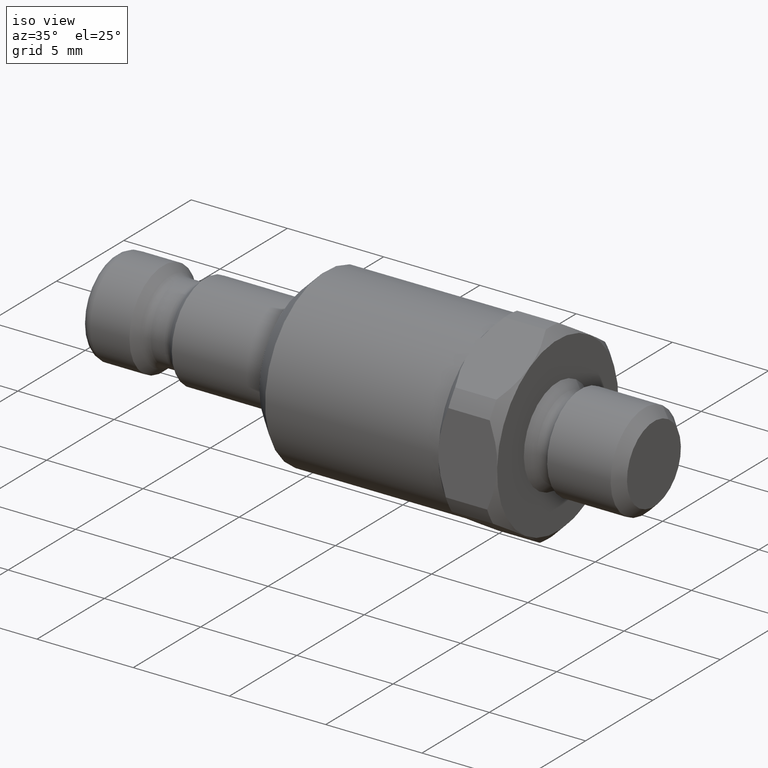
[diagram: clean part render]
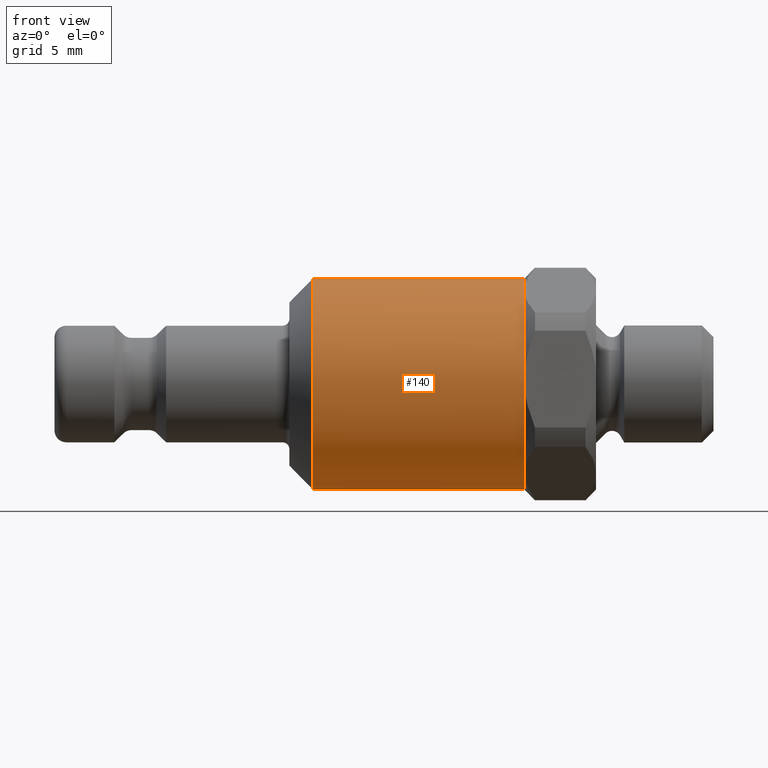
[diagram: tour spotlight — one face highlighted and labeled with its STEP entity id]
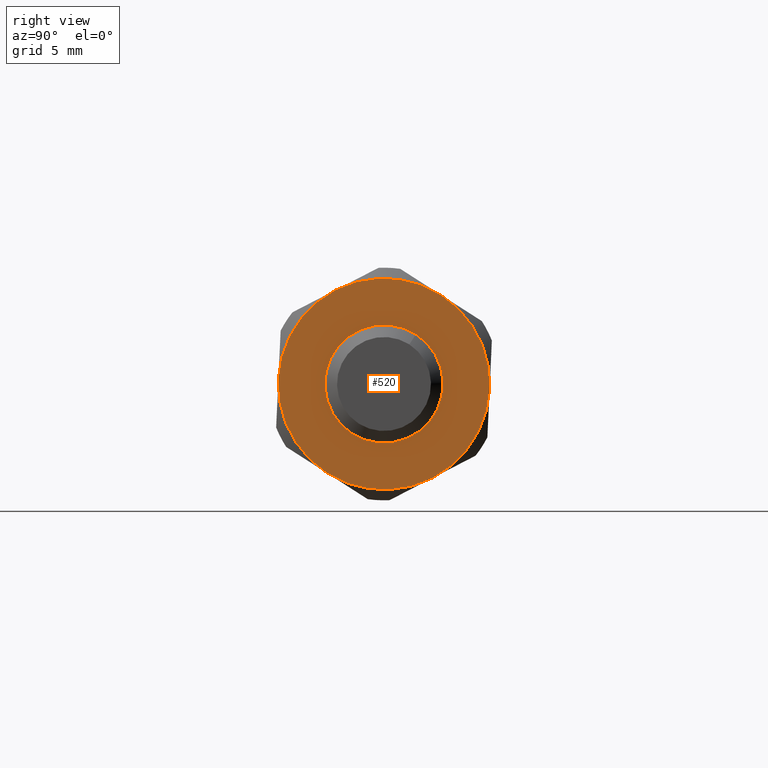
[diagram: tour spotlight — one face highlighted and labeled with its STEP entity id]
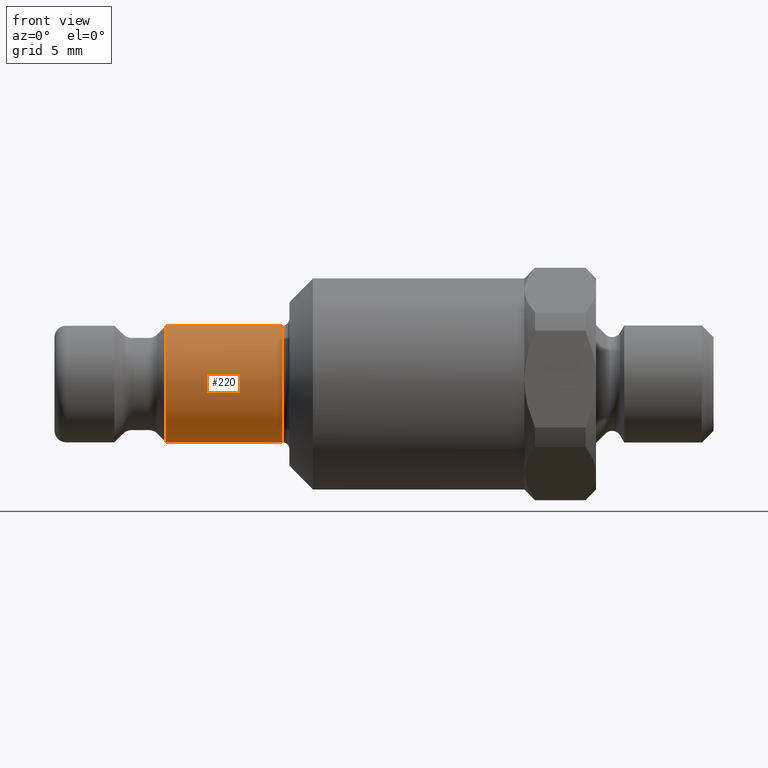
[diagram: tour spotlight — one face highlighted and labeled with its STEP entity id]
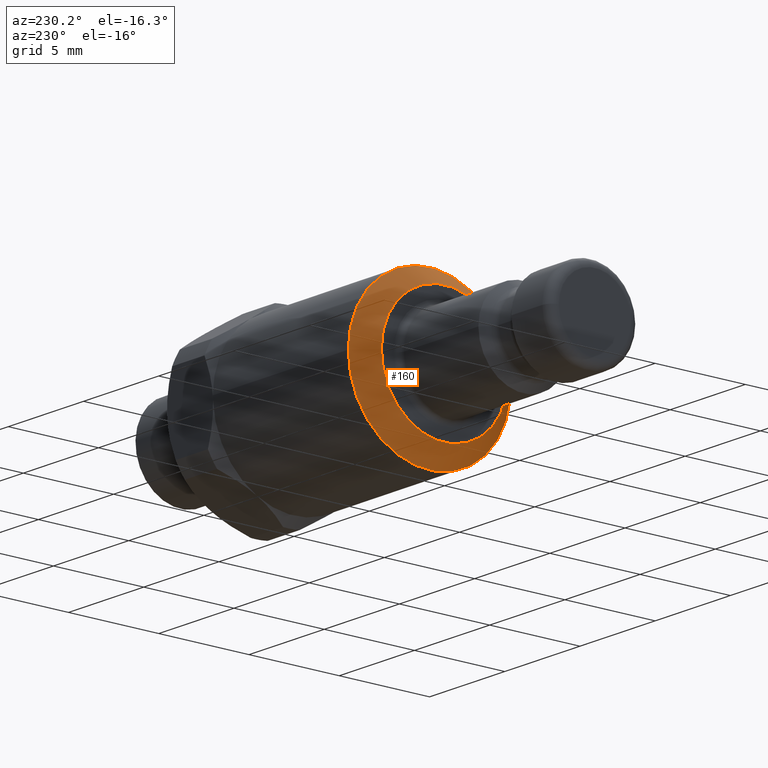
[diagram: tour spotlight — one face highlighted and labeled with its STEP entity id]
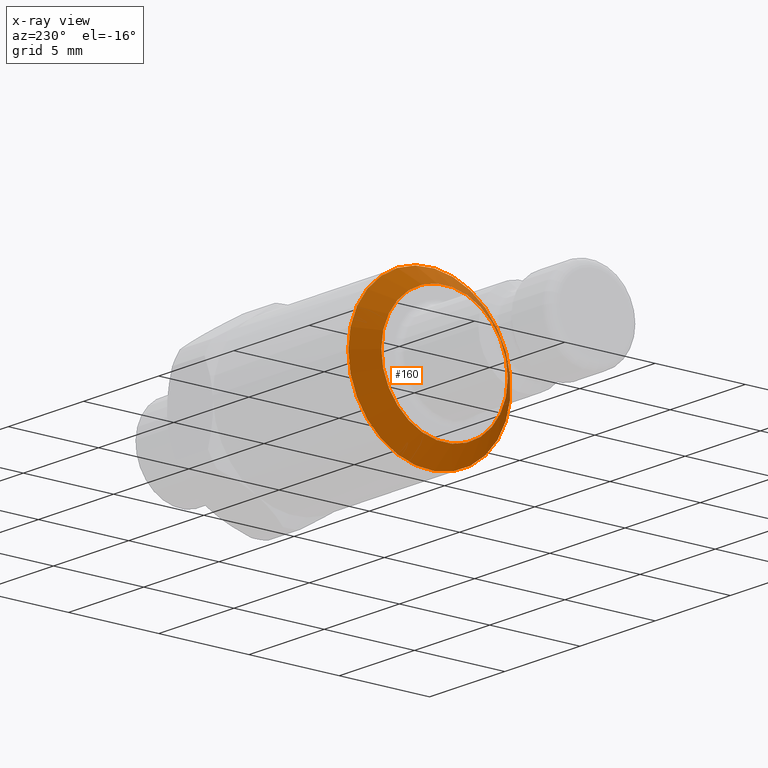
[diagram: x-ray of the same camera — body ghosted, this tour face saturated]
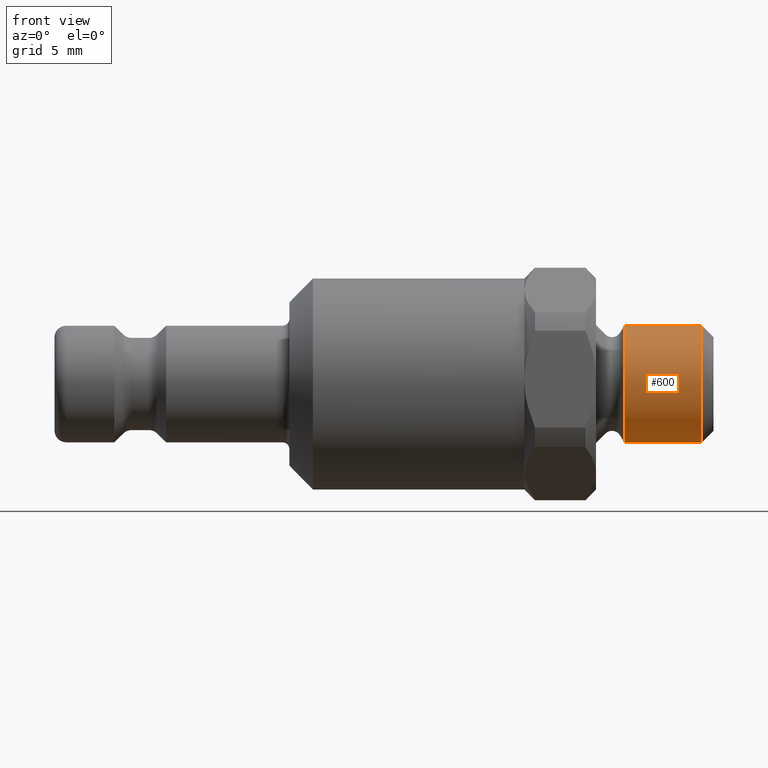
[diagram: tour spotlight — one face highlighted and labeled with its STEP entity id]
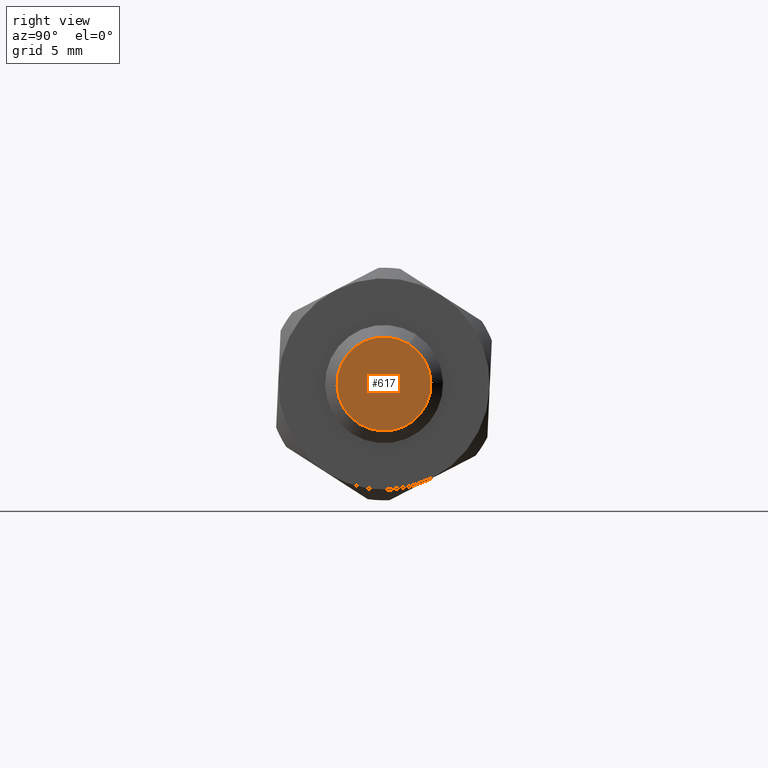
[diagram: tour spotlight — one face highlighted and labeled with its STEP entity id]
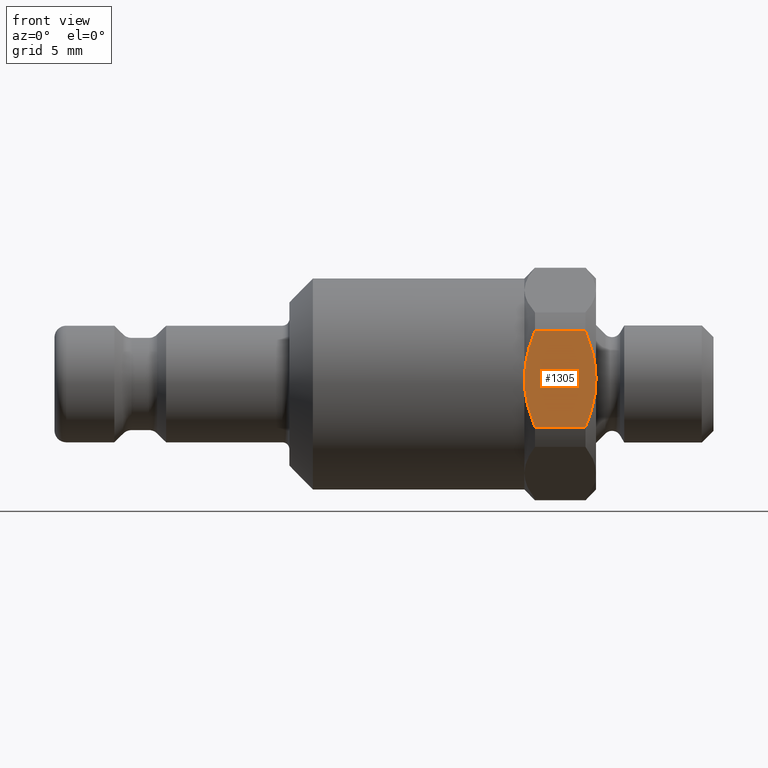
[diagram: tour spotlight — one face highlighted and labeled with its STEP entity id]
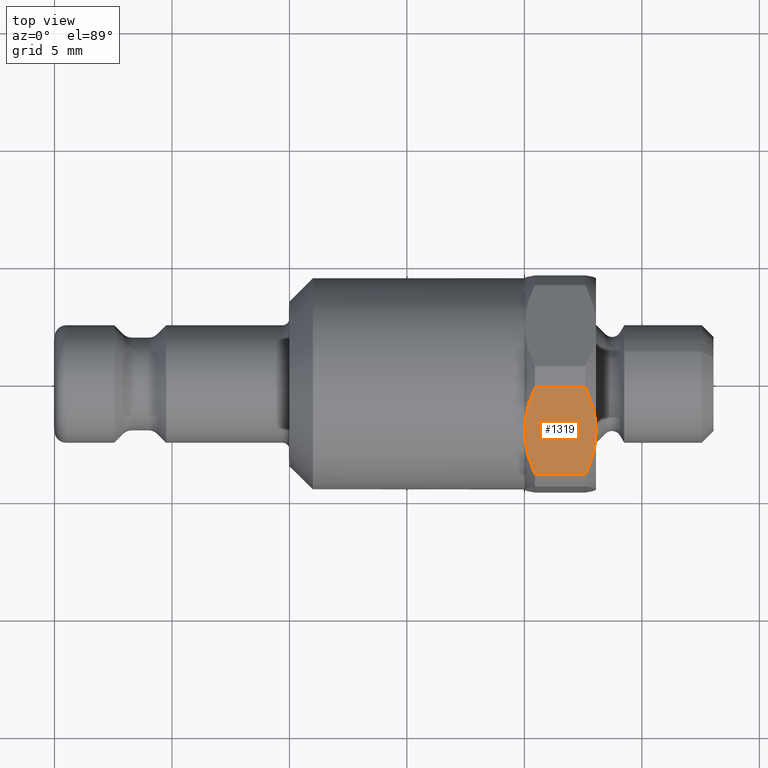
[diagram: tour spotlight — one face highlighted and labeled with its STEP entity id]
A machine part: a face-by-face anatomy tour. The part has 59 B-rep faces; the first image is the clean iso view, then the 8 largest visible faces are spotlighted one at a time (largest first), each with its STEP entity span.

Face 1 — front view, entity #140. In plain terms, the highlighted cylindrical surface (bore or boss wall) has radius 4.5 mm, axis along (1, 0, 0).
Definition (entity closure, byte-faithful):
#68=CARTESIAN_POINT('',(15.499999999999989,0.0,0.0));
#69=DIRECTION('',(1.0,0.0,0.0));
#70=DIRECTION('',(0.0,1.0,0.0));
#71=AXIS2_PLACEMENT_3D('',#68,#69,#70);
#72=CYLINDRICAL_SURFACE('',#71,4.500000000000001);
#73=CARTESIAN_POINT('',(20.0,4.495207189392,-0.207635075164289));
#74=VERTEX_POINT('',#73);
#75=CARTESIAN_POINT('',(20.0,2.427420844504965,3.789146083705774));
#76=VERTEX_POINT('',#75);
#77=CARTESIAN_POINT('',(20.0,0.0,0.0));
#78=DIRECTION('',(1.0,0.0,0.0));
#79=DIRECTION('',(0.0,1.0,0.0));
#80=AXIS2_PLACEMENT_3D('',#77,#78,#79);
#81=CIRCLE('',#80,4.5);
#82=EDGE_CURVE('',#74,#76,#81,.T.);
#83=ORIENTED_EDGE('',*,*,#82,.F.);
#84=CARTESIAN_POINT('',(20.0,2.067786344887035,-3.996781158870063));
#85=VERTEX_POINT('',#84);
#86=CARTESIAN_POINT('',(20.0,0.0,0.0));
#87=DIRECTION('',(1.0,0.0,0.0));
#88=DIRECTION('',(0.0,1.0,0.0));
#89=AXIS2_PLACEMENT_3D('',#86,#87,#88);
#90=CIRCLE('',#89,4.5);
#91=EDGE_CURVE('',#85,#74,#90,.T.);
#92=ORIENTED_EDGE('',*,*,#91,.F.);
#93=CARTESIAN_POINT('',(20.0,-2.427420844504966,-3.789146083705774));
#94=VERTEX_POINT('',#93);
#95=CARTESIAN_POINT('',(20.0,0.0,0.0));
#96=DIRECTION('',(1.0,0.0,0.0));
#97=DIRECTION('',(0.0,1.0,0.0));
#98=AXIS2_PLACEMENT_3D('',#95,#96,#97);
#99=CIRCLE('',#98,4.5);
#100=EDGE_CURVE('',#94,#85,#99,.T.);
#101=ORIENTED_EDGE('',*,*,#100,.F.);
#102=CARTESIAN_POINT('',(20.0,-4.495207189392,0.207635075164287));
#103=VERTEX_POINT('',#102);
#104=CARTESIAN_POINT('',(20.0,0.0,0.0));
#105=DIRECTION('',(1.0,0.0,0.0));
#106=DIRECTION('',(0.0,1.0,0.0));
#107=AXIS2_PLACEMENT_3D('',#104,#105,#106);
#108=CIRCLE('',#107,4.5);
#109=EDGE_CURVE('',#103,#94,#108,.T.);
#110=ORIENTED_EDGE('',*,*,#109,.F.);
#111=CARTESIAN_POINT('',(20.0,-2.067786344887038,3.996781158870061));
#112=VERTEX_POINT('',#111);
#113=CARTESIAN_POINT('',(20.0,0.0,0.0));
#114=DIRECTION('',(1.0,0.0,0.0));
#115=DIRECTION('',(0.0,1.0,0.0));
#116=AXIS2_PLACEMENT_3D('',#113,#114,#115);
#117=CIRCLE('',#116,4.5);
#118=EDGE_CURVE('',#112,#103,#117,.T.);
#119=ORIENTED_EDGE('',*,*,#118,.F.);
#120=CARTESIAN_POINT('',(20.0,0.0,0.0));
#121=DIRECTION('',(1.0,0.0,0.0));
#122=DIRECTION('',(0.0,1.0,0.0));
#123=AXIS2_PLACEMENT_3D('',#120,#121,#122);
#124=CIRCLE('',#123,4.5);
#125=EDGE_CURVE('',#76,#112,#124,.T.);
#126=ORIENTED_EDGE('',*,*,#125,.F.);
#127=EDGE_LOOP('',(#83,#92,#101,#110,#119,#126));
#128=FACE_OUTER_BOUND('',#127,.T.);
#129=CARTESIAN_POINT('',(10.999999999999979,4.500000000000002,0.0));
#130=VERTEX_POINT('',#129);
#131=CARTESIAN_POINT('',(10.999999999999979,0.0,0.0));
#132=DIRECTION('',(1.0,0.0,0.0));
#133=DIRECTION('',(0.0,1.0,0.0));
#134=AXIS2_PLACEMENT_3D('',#131,#132,#133);
#135=CIRCLE('',#134,4.500000000000002);
#136=EDGE_CURVE('',#130,#130,#135,.T.);
#137=ORIENTED_EDGE('',*,*,#136,.T.);
#138=EDGE_LOOP('',(#137));
#139=FACE_BOUND('',#138,.T.);
#140=ADVANCED_FACE('',(#128,#139),#72,.T.);

Face 2 — right view, entity #520. In plain terms, the highlighted planar face has unit normal (1, 0, 0).
Definition (entity closure, byte-faithful):
#417=CARTESIAN_POINT('',(23.050000000000001,-2.067786344887038,3.996781158870061));
#418=VERTEX_POINT('',#417);
#433=CARTESIAN_POINT('',(23.050000000000001,-4.495207189392,0.207635075164287));
#434=VERTEX_POINT('',#433);
#448=CARTESIAN_POINT('',(23.050000000000001,-3.303037E-016,-4.314083E-031));
#449=DIRECTION('',(-1.0,-1.922244E-017,-3.000577E-017));
#450=DIRECTION('',(-3.563494E-017,0.539426854334437,0.842032463045727));
#451=AXIS2_PLACEMENT_3D('',#448,#449,#450);
#452=CIRCLE('',#451,4.5);
#453=EDGE_CURVE('',#434,#418,#452,.T.);
#458=CARTESIAN_POINT('',(23.050000000000001,1.891958597591721,2.953302278353024));
#459=DIRECTION('',(1.0,0.0,0.0));
#460=DIRECTION('',(0.0,-0.539426854334437,-0.842032463045727));
#461=AXIS2_PLACEMENT_3D('',#458,#459,#460);
#462=PLANE('',#461);
#463=CARTESIAN_POINT('',(23.050000000000001,2.427420844504966,3.789146083705774));
#464=VERTEX_POINT('',#463);
#465=CARTESIAN_POINT('',(23.050000000000001,4.495207189392,-0.207635075164289));
#466=VERTEX_POINT('',#465);
#467=CARTESIAN_POINT('',(23.050000000000001,-3.303037E-016,-4.314083E-031));
#468=DIRECTION('',(-1.0,-1.922244E-017,-3.000577E-017));
#469=DIRECTION('',(-3.563494E-017,0.539426854334437,0.842032463045727));
#470=AXIS2_PLACEMENT_3D('',#467,#468,#469);
#471=CIRCLE('',#470,4.5);
#472=EDGE_CURVE('',#464,#466,#471,.T.);
#473=ORIENTED_EDGE('',*,*,#472,.F.);
#474=CARTESIAN_POINT('',(23.050000000000001,-3.303037E-016,-4.314083E-031));
#475=DIRECTION('',(-1.0,-1.922244E-017,-3.000577E-017));
#476=DIRECTION('',(-3.563494E-017,0.539426854334437,0.842032463045727));
#477=AXIS2_PLACEMENT_3D('',#474,#475,#476);
#478=CIRCLE('',#477,4.5);
#479=EDGE_CURVE('',#418,#464,#478,.T.);
#480=ORIENTED_EDGE('',*,*,#479,.F.);
#481=ORIENTED_EDGE('',*,*,#453,.F.);
#482=CARTESIAN_POINT('',(23.050000000000001,-2.427420844504966,-3.789146083705774));
#483=VERTEX_POINT('',#482);
#484=CARTESIAN_POINT('',(23.050000000000001,-3.303037E-016,-4.314083E-031));
#485=DIRECTION('',(-1.0,-1.922244E-017,-3.000577E-017));
#486=DIRECTION('',(-3.563494E-017,0.539426854334437,0.842032463045727));
#487=AXIS2_PLACEMENT_3D('',#484,#485,#486);
#488=CIRCLE('',#487,4.5);
#489=EDGE_CURVE('',#483,#434,#488,.T.);
#490=ORIENTED_EDGE('',*,*,#489,.F.);
#491=CARTESIAN_POINT('',(23.050000000000001,2.067786344887035,-3.996781158870063));
#492=VERTEX_POINT('',#491);
#493=CARTESIAN_POINT('',(23.050000000000001,-3.303037E-016,-4.314083E-031));
#494=DIRECTION('',(-1.0,-1.922244E-017,-3.000577E-017));
#495=DIRECTION('',(-3.563494E-017,0.539426854334437,0.842032463045727));
#496=AXIS2_PLACEMENT_3D('',#493,#494,#495);
#497=CIRCLE('',#496,4.5);
#498=EDGE_CURVE('',#492,#483,#497,.T.);
#499=ORIENTED_EDGE('',*,*,#498,.F.);
#500=CARTESIAN_POINT('',(23.050000000000001,-3.303037E-016,-4.314083E-031));
#501=DIRECTION('',(-1.0,-1.922244E-017,-3.000577E-017));
#502=DIRECTION('',(-3.563494E-017,0.539426854334437,0.842032463045727));
#503=AXIS2_PLACEMENT_3D('',#500,#501,#502);
#504=CIRCLE('',#503,4.5);
#505=EDGE_CURVE('',#466,#492,#504,.T.);
#506=ORIENTED_EDGE('',*,*,#505,.F.);
#507=EDGE_LOOP('',(#473,#480,#481,#490,#499,#506));
#508=FACE_OUTER_BOUND('',#507,.T.);
#509=CARTESIAN_POINT('',(23.050000000000001,1.356496350678476,2.117458473000275));
#510=VERTEX_POINT('',#509);
#511=CARTESIAN_POINT('',(23.050000000000001,-3.303037E-016,-4.314083E-031));
#512=DIRECTION('',(-1.0,-1.922244E-017,-3.000577E-017));
#513=DIRECTION('',(-3.563494E-017,0.539426854334437,0.842032463045728));
#514=AXIS2_PLACEMENT_3D('',#511,#512,#513);
#515=CIRCLE('',#514,2.514699332780099);
#516=EDGE_CURVE('',#510,#510,#515,.T.);
#517=ORIENTED_EDGE('',*,*,#516,.T.);
#518=EDGE_LOOP('',(#517));
#519=FACE_BOUND('',#518,.T.);
#520=ADVANCED_FACE('',(#508,#519),#462,.T.);

Face 3 — front view, entity #220. In plain terms, the highlighted cylindrical surface (bore or boss wall) has radius 2.5 mm, axis along (1, 0, 0).
Definition (entity closure, byte-faithful):
#189=CARTESIAN_POINT('',(9.699999999999999,2.499999999999999,0.0));
#190=VERTEX_POINT('',#189);
#191=CARTESIAN_POINT('',(9.699999999999999,0.0,0.0));
#192=DIRECTION('',(1.0,0.0,0.0));
#193=DIRECTION('',(0.0,1.0,0.0));
#194=AXIS2_PLACEMENT_3D('',#191,#192,#193);
#195=CIRCLE('',#194,2.499999999999999);
#196=EDGE_CURVE('',#190,#190,#195,.T.);
#201=CARTESIAN_POINT('',(7.225,0.0,0.0));
#202=DIRECTION('',(1.0,0.0,0.0));
#203=DIRECTION('',(0.0,1.0,0.0));
#204=AXIS2_PLACEMENT_3D('',#201,#202,#203);
#205=CYLINDRICAL_SURFACE('',#204,2.499999999999999);
#206=ORIENTED_EDGE('',*,*,#196,.F.);
#207=EDGE_LOOP('',(#206));
#208=FACE_OUTER_BOUND('',#207,.T.);
#209=CARTESIAN_POINT('',(4.75,2.499999999999999,0.0));
#210=VERTEX_POINT('',#209);
#211=CARTESIAN_POINT('',(4.750000000000001,0.0,0.0));
#212=DIRECTION('',(1.0,0.0,0.0));
#213=DIRECTION('',(0.0,1.0,0.0));
#214=AXIS2_PLACEMENT_3D('',#211,#212,#213);
#215=CIRCLE('',#214,2.499999999999999);
#216=EDGE_CURVE('',#210,#210,#215,.T.);
#217=ORIENTED_EDGE('',*,*,#216,.T.);
#218=EDGE_LOOP('',(#217));
#219=FACE_BOUND('',#218,.T.);
#220=ADVANCED_FACE('',(#208,#219),#205,.T.);

Face 4 — auxiliary view, entity #160. An x-ray twin of the same camera follows (body ghosted, this face saturated) — the face is partly hidden behind the body. In plain terms, the highlighted conical surface has half-angle 45 deg.
Definition (entity closure, byte-faithful):
#129=CARTESIAN_POINT('',(10.999999999999979,4.500000000000002,0.0));
#130=VERTEX_POINT('',#129);
#131=CARTESIAN_POINT('',(10.999999999999979,0.0,0.0));
#132=DIRECTION('',(1.0,0.0,0.0));
#133=DIRECTION('',(0.0,1.0,0.0));
#134=AXIS2_PLACEMENT_3D('',#131,#132,#133);
#135=CIRCLE('',#134,4.500000000000002);
#136=EDGE_CURVE('',#130,#130,#135,.T.);
#141=CARTESIAN_POINT('',(10.499999999999989,0.0,0.0));
#142=DIRECTION('',(1.0,0.0,0.0));
#143=DIRECTION('',(0.0,1.0,0.0));
#144=AXIS2_PLACEMENT_3D('',#141,#142,#143);
#145=CONICAL_SURFACE('',#144,4.0,45.000000000000732);
#146=ORIENTED_EDGE('',*,*,#136,.F.);
#147=EDGE_LOOP('',(#146));
#148=FACE_OUTER_BOUND('',#147,.T.);
#149=CARTESIAN_POINT('',(10.0,3.499999999999997,0.0));
#150=VERTEX_POINT('',#149);
#151=CARTESIAN_POINT('',(10.0,0.0,0.0));
#152=DIRECTION('',(1.0,0.0,0.0));
#153=DIRECTION('',(0.0,1.0,0.0));
#154=AXIS2_PLACEMENT_3D('',#151,#152,#153);
#155=CIRCLE('',#154,3.499999999999997);
#156=EDGE_CURVE('',#150,#150,#155,.T.);
#157=ORIENTED_EDGE('',*,*,#156,.T.);
#158=EDGE_LOOP('',(#157));
#159=FACE_BOUND('',#158,.T.);
#160=ADVANCED_FACE('',(#148,#159),#145,.T.);

Face 5 — front view, entity #600. In plain terms, the highlighted cylindrical surface (bore or boss wall) has radius 2.5 mm, axis along (-1, -0, 0).
Definition (entity closure, byte-faithful):
#569=CARTESIAN_POINT('',(24.250000000000004,1.348567135836092,2.105081157614319));
#570=VERTEX_POINT('',#569);
#571=CARTESIAN_POINT('',(24.250000000000004,-2.510308E-016,-5.349463E-031));
#572=DIRECTION('',(-1.0,-1.922244E-017,-3.000577E-017));
#573=DIRECTION('',(-3.563494E-017,0.539426854334437,0.842032463045727));
#574=AXIS2_PLACEMENT_3D('',#571,#572,#573);
#575=CIRCLE('',#574,2.5);
#576=EDGE_CURVE('',#570,#570,#575,.T.);
#581=CARTESIAN_POINT('',(26.150000000000002,-1.255154E-016,-6.988815E-031));
#582=DIRECTION('',(-1.0,-6.606074E-017,8.628166E-032));
#583=DIRECTION('',(-3.563494E-017,0.539426854334437,0.842032463045727));
#584=AXIS2_PLACEMENT_3D('',#581,#582,#583);
#585=CYLINDRICAL_SURFACE('',#584,2.5);
#586=ORIENTED_EDGE('',*,*,#576,.F.);
#587=EDGE_LOOP('',(#586));
#588=FACE_OUTER_BOUND('',#587,.T.);
#589=CARTESIAN_POINT('',(27.550000000000004,1.348567135836092,2.105081157614319));
#590=VERTEX_POINT('',#589);
#591=CARTESIAN_POINT('',(27.550000000000004,-3.303037E-017,-8.196758E-031));
#592=DIRECTION('',(1.0,1.922244E-017,3.000577E-017));
#593=DIRECTION('',(3.563494E-017,-0.539426854334437,-0.842032463045727));
#594=AXIS2_PLACEMENT_3D('',#591,#592,#593);
#595=CIRCLE('',#594,2.5);
#596=EDGE_CURVE('',#590,#590,#595,.T.);
#597=ORIENTED_EDGE('',*,*,#596,.F.);
#598=EDGE_LOOP('',(#597));
#599=FACE_BOUND('',#598,.T.);
#600=ADVANCED_FACE('',(#588,#599),#585,.T.);

Face 6 — right view, entity #617. In plain terms, the highlighted planar face has unit normal (1, 0, 0).
Definition (entity closure, byte-faithful):
#601=CARTESIAN_POINT('',(28.050000000000001,1.011425351877069,1.578810868210739));
#602=DIRECTION('',(1.0,0.0,0.0));
#603=DIRECTION('',(0.0,-0.539426854334437,-0.842032463045727));
#604=AXIS2_PLACEMENT_3D('',#601,#602,#603);
#605=PLANE('',#604);
#606=CARTESIAN_POINT('',(28.050000000000001,1.078853708668874,1.684064926091455));
#607=VERTEX_POINT('',#606);
#608=CARTESIAN_POINT('',(28.050000000000001,-4.960161E-031,-8.628166E-031));
#609=DIRECTION('',(-1.0,-1.922244E-017,-3.000577E-017));
#610=DIRECTION('',(3.563494E-017,-0.539426854334437,-0.842032463045727));
#611=AXIS2_PLACEMENT_3D('',#608,#609,#610);
#612=CIRCLE('',#611,2.0);
#613=EDGE_CURVE('',#607,#607,#612,.T.);
#614=ORIENTED_EDGE('',*,*,#613,.F.);
#615=EDGE_LOOP('',(#614));
#616=FACE_OUTER_BOUND('',#615,.T.);
#617=ADVANCED_FACE('',(#616),#605,.T.);

Face 7 — front view, entity #1305. In plain terms, the highlighted planar face has unit normal (-0, 0.9989, -0.0461).
Definition (entity closure, byte-faithful):
#102=CARTESIAN_POINT('',(20.0,-4.495207189392,0.207635075164287));
#103=VERTEX_POINT('',#102);
#385=CARTESIAN_POINT('',(20.450000000000003,-4.40005684450518,2.267597796154143));
#386=VERTEX_POINT('',#385);
#394=CARTESIAN_POINT('',(22.600000000000001,-4.40005684450518,2.267597796154143));
#395=VERTEX_POINT('',#394);
#396=CARTESIAN_POINT('',(20.450000000000003,-4.400056844505182,2.267597796154142));
#397=DIRECTION('',(1.0,0.0,0.0));
#398=VECTOR('',#397,2.149999999999999);
#399=LINE('',#396,#398);
#400=EDGE_CURVE('',#386,#395,#399,.T.);
#433=CARTESIAN_POINT('',(23.050000000000001,-4.495207189392,0.207635075164287));
#434=VERTEX_POINT('',#433);
#435=CARTESIAN_POINT('',(22.600000000000001,-4.400056844505181,2.267597796154142));
#436=CARTESIAN_POINT('',(23.050000000000001,-4.449897501350658,1.188569704207075));
#437=CARTESIAN_POINT('',(23.050000000000001,-4.495207189392,0.207635075164287));
#445=(BOUNDED_CURVE()B_SPLINE_CURVE(2,(#435,#436,#437),.UNSPECIFIED.,.F.,.U.)B_SPLINE_CURVE_WITH_KNOTS((3,3),(0.0,0.212132062836384),.UNSPECIFIED.)CURVE()GEOMETRIC_REPRESENTATION_ITEM()RATIONAL_B_SPLINE_CURVE((1.0,1.02469507659596,1.0))REPRESENTATION_ITEM(''));
#446=EDGE_CURVE('',#395,#434,#445,.T.);
#649=CARTESIAN_POINT('',(20.000000000000004,-4.495207189392,0.207635075164287));
#650=CARTESIAN_POINT('',(20.000000000000004,-4.449897501350658,1.188569704207072));
#651=CARTESIAN_POINT('',(20.450000000000003,-4.400056844505182,2.267597796154138));
#659=(BOUNDED_CURVE()B_SPLINE_CURVE(2,(#649,#650,#651),.UNSPECIFIED.,.F.,.U.)B_SPLINE_CURVE_WITH_KNOTS((3,3),(0.212132062836384,0.424264125672768),.UNSPECIFIED.)CURVE()GEOMETRIC_REPRESENTATION_ITEM()RATIONAL_B_SPLINE_CURVE((1.0,1.024695076595957,1.0))REPRESENTATION_ITEM(''));
#660=EDGE_CURVE('',#103,#386,#659,.T.);
#751=CARTESIAN_POINT('',(22.600000000000001,-4.590357534278819,-1.852327645825568));
#752=VERTEX_POINT('',#751);
#753=CARTESIAN_POINT('',(23.050000000000001,-4.495207189392,0.207635075164287));
#754=CARTESIAN_POINT('',(23.050000000000001,-4.540516877433342,-0.773299553878501));
#755=CARTESIAN_POINT('',(22.600000000000001,-4.590357534278819,-1.852327645825568));
#763=(BOUNDED_CURVE()B_SPLINE_CURVE(2,(#753,#754,#755),.UNSPECIFIED.,.F.,.U.)B_SPLINE_CURVE_WITH_KNOTS((3,3),(0.212132062836384,0.424264125672768),.UNSPECIFIED.)CURVE()GEOMETRIC_REPRESENTATION_ITEM()RATIONAL_B_SPLINE_CURVE((1.0,1.024695076595962,1.0))REPRESENTATION_ITEM(''));
#764=EDGE_CURVE('',#434,#752,#763,.T.);
#953=CARTESIAN_POINT('',(20.450000000000003,-4.590357534278819,-1.85232764582557));
#954=VERTEX_POINT('',#953);
#955=CARTESIAN_POINT('',(22.600000000000001,-4.590357534278819,-1.852327645825569));
#956=DIRECTION('',(-1.0,0.0,0.0));
#957=VECTOR('',#956,2.149999999999999);
#958=LINE('',#955,#957);
#959=EDGE_CURVE('',#752,#954,#958,.T.);
#1123=CARTESIAN_POINT('',(20.450000000000003,-4.590357534278819,-1.852327645825564));
#1124=CARTESIAN_POINT('',(20.000000000000004,-4.540516877433342,-0.773299553878499));
#1125=CARTESIAN_POINT('',(20.000000000000004,-4.495207189392,0.207635075164287));
#1133=(BOUNDED_CURVE()B_SPLINE_CURVE(2,(#1123,#1124,#1125),.UNSPECIFIED.,.F.,.U.)B_SPLINE_CURVE_WITH_KNOTS((3,3),(0.0,0.212132062836384),.UNSPECIFIED.)CURVE()GEOMETRIC_REPRESENTATION_ITEM()RATIONAL_B_SPLINE_CURVE((1.0,1.024695076595977,1.0))REPRESENTATION_ITEM(''));
#1134=EDGE_CURVE('',#954,#103,#1133,.T.);
#1292=CARTESIAN_POINT('',(19.031643322095782,-4.495207189392,0.207635075164287));
#1293=DIRECTION('',(-1.779958E-016,0.998934930976,-0.046141127814286));
#1294=DIRECTION('',(-1.0,0.0,0.0));
#1295=AXIS2_PLACEMENT_3D('',#1292,#1293,#1294);
#1296=PLANE('',#1295);
#1297=ORIENTED_EDGE('',*,*,#446,.F.);
#1298=ORIENTED_EDGE('',*,*,#400,.F.);
#1299=ORIENTED_EDGE('',*,*,#660,.F.);
#1300=ORIENTED_EDGE('',*,*,#1134,.F.);
#1301=ORIENTED_EDGE('',*,*,#959,.F.);
#1302=ORIENTED_EDGE('',*,*,#764,.F.);
#1303=EDGE_LOOP('',(#1297,#1298,#1299,#1300,#1301,#1302));
#1304=FACE_OUTER_BOUND('',#1303,.T.);
#1305=ADVANCED_FACE('',(#1304),#1296,.F.);

Face 8 — top view, entity #1319. In plain terms, the highlighted planar face has unit normal (-0, 0.4595, -0.8882).
Definition (entity closure, byte-faithful):
#111=CARTESIAN_POINT('',(20.0,-2.067786344887038,3.996781158870061));
#112=VERTEX_POINT('',#111);
#375=CARTESIAN_POINT('',(22.600000000000001,-3.899341564556578,3.049202414225968));
#376=VERTEX_POINT('',#375);
#377=CARTESIAN_POINT('',(20.450000000000003,-3.899341564556578,3.049202414225968));
#378=VERTEX_POINT('',#377);
#379=CARTESIAN_POINT('',(22.600000000000001,-3.899341564556578,3.049202414225968));
#380=DIRECTION('',(-1.0,0.0,0.0));
#381=VECTOR('',#380,2.149999999999999);
#382=LINE('',#379,#381);
#383=EDGE_CURVE('',#376,#378,#382,.T.);
#417=CARTESIAN_POINT('',(23.050000000000001,-2.067786344887038,3.996781158870061));
#418=VERTEX_POINT('',#417);
#419=CARTESIAN_POINT('',(23.050000000000001,-2.067786344887038,3.996781158870062));
#420=CARTESIAN_POINT('',(23.050000000000001,-2.939955497110626,3.545553185230019));
#421=CARTESIAN_POINT('',(22.600000000000001,-3.899341564556575,3.049202414225971));
#429=(BOUNDED_CURVE()B_SPLINE_CURVE(2,(#419,#420,#421),.UNSPECIFIED.,.F.,.U.)B_SPLINE_CURVE_WITH_KNOTS((3,3),(0.212132062836384,0.424264125672768),.UNSPECIFIED.)CURVE()GEOMETRIC_REPRESENTATION_ITEM()RATIONAL_B_SPLINE_CURVE((1.0,1.024695076595967,1.0))REPRESENTATION_ITEM(''));
#430=EDGE_CURVE('',#418,#376,#429,.T.);
#635=CARTESIAN_POINT('',(20.450000000000003,-3.899341564556573,3.049202414225972));
#636=CARTESIAN_POINT('',(20.000000000000004,-2.939955497110623,3.54555318523002));
#637=CARTESIAN_POINT('',(20.000000000000004,-2.067786344887038,3.996781158870061));
#645=(BOUNDED_CURVE()B_SPLINE_CURVE(2,(#635,#636,#637),.UNSPECIFIED.,.F.,.U.)B_SPLINE_CURVE_WITH_KNOTS((3,3),(0.0,0.212132062836384),.UNSPECIFIED.)CURVE()GEOMETRIC_REPRESENTATION_ITEM()RATIONAL_B_SPLINE_CURVE((1.0,1.024695076595979,1.0))REPRESENTATION_ITEM(''));
#646=EDGE_CURVE('',#378,#112,#645,.T.);
#921=CARTESIAN_POINT('',(22.600000000000001,-0.236231125217498,4.944359903514154));
#922=VERTEX_POINT('',#921);
#923=CARTESIAN_POINT('',(22.600000000000001,-0.236231125217501,4.944359903514152));
#924=CARTESIAN_POINT('',(23.050000000000001,-1.195617192663449,4.448009132510105));
#925=CARTESIAN_POINT('',(23.050000000000001,-2.067786344887038,3.996781158870062));
#933=(BOUNDED_CURVE()B_SPLINE_CURVE(2,(#923,#924,#925),.UNSPECIFIED.,.F.,.U.)B_SPLINE_CURVE_WITH_KNOTS((3,3),(0.0,0.212132062836384),.UNSPECIFIED.)CURVE()GEOMETRIC_REPRESENTATION_ITEM()RATIONAL_B_SPLINE_CURVE((1.0,1.024695076595977,1.0))REPRESENTATION_ITEM(''));
#934=EDGE_CURVE('',#922,#418,#933,.T.);
#1074=CARTESIAN_POINT('',(20.450000000000003,-0.236231125217497,4.944359903514154));
#1075=VERTEX_POINT('',#1074);
#1076=CARTESIAN_POINT('',(20.450000000000003,-0.236231125217497,4.944359903514154));
#1077=DIRECTION('',(1.0,0.0,0.0));
#1078=VECTOR('',#1077,2.149999999999999);
#1079=LINE('',#1076,#1078);
#1080=EDGE_CURVE('',#1075,#922,#1079,.T.);
#1099=CARTESIAN_POINT('',(20.000000000000004,-2.067786344887038,3.996781158870061));
#1100=CARTESIAN_POINT('',(20.000000000000004,-1.195617192663453,4.448009132510102));
#1101=CARTESIAN_POINT('',(20.450000000000003,-0.236231125217503,4.944359903514151));
#1109=(BOUNDED_CURVE()B_SPLINE_CURVE(2,(#1099,#1100,#1101),.UNSPECIFIED.,.F.,.U.)B_SPLINE_CURVE_WITH_KNOTS((3,3),(0.212132062836384,0.424264125672767),.UNSPECIFIED.)CURVE()GEOMETRIC_REPRESENTATION_ITEM()RATIONAL_B_SPLINE_CURVE((1.0,1.024695076595976,1.0))REPRESENTATION_ITEM(''));
#1110=EDGE_CURVE('',#112,#1075,#1109,.T.);
#1306=CARTESIAN_POINT('',(19.031643322095782,-2.067786344887038,3.996781158870061));
#1307=DIRECTION('',(-1.423608E-016,0.459508076641564,-0.888173590860014));
#1308=DIRECTION('',(-1.0,0.0,0.0));
#1309=AXIS2_PLACEMENT_3D('',#1306,#1307,#1308);
#1310=PLANE('',#1309);
#1311=ORIENTED_EDGE('',*,*,#934,.F.);
#1312=ORIENTED_EDGE('',*,*,#1080,.F.);
#1313=ORIENTED_EDGE('',*,*,#1110,.F.);
#1314=ORIENTED_EDGE('',*,*,#646,.F.);
#1315=ORIENTED_EDGE('',*,*,#383,.F.);
#1316=ORIENTED_EDGE('',*,*,#430,.F.);
#1317=EDGE_LOOP('',(#1311,#1312,#1313,#1314,#1315,#1316));
#1318=FACE_OUTER_BOUND('',#1317,.T.);
#1319=ADVANCED_FACE('',(#1318),#1310,.F.);